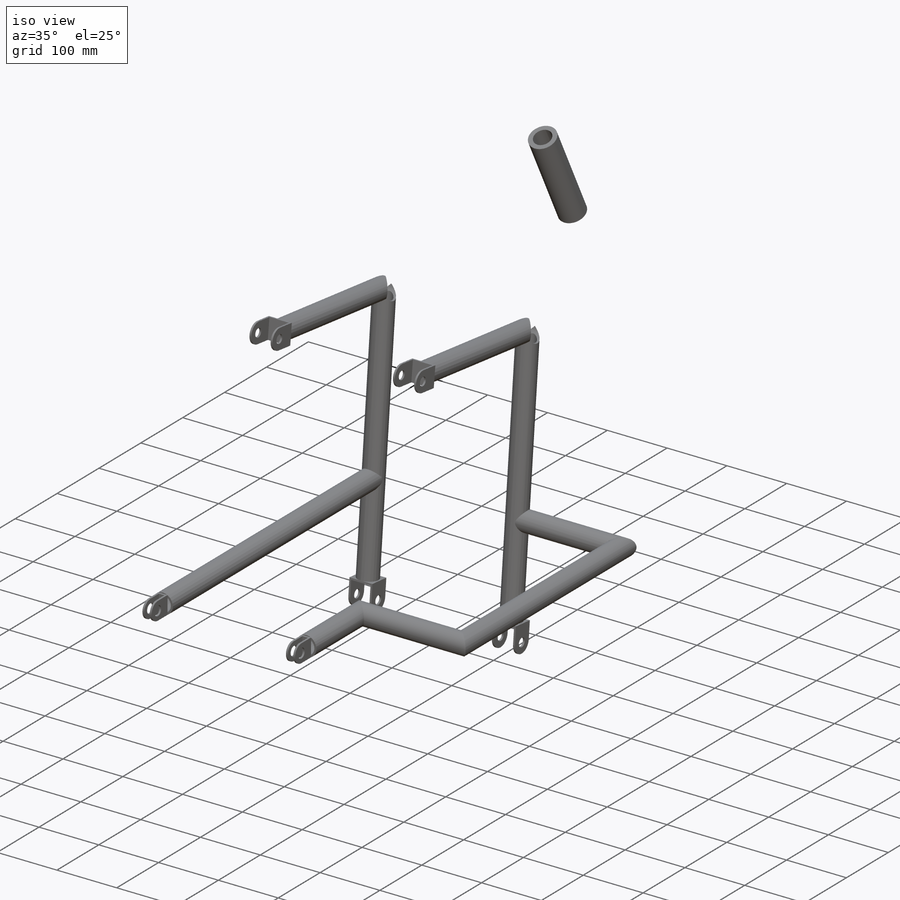
[diagram: iso view]
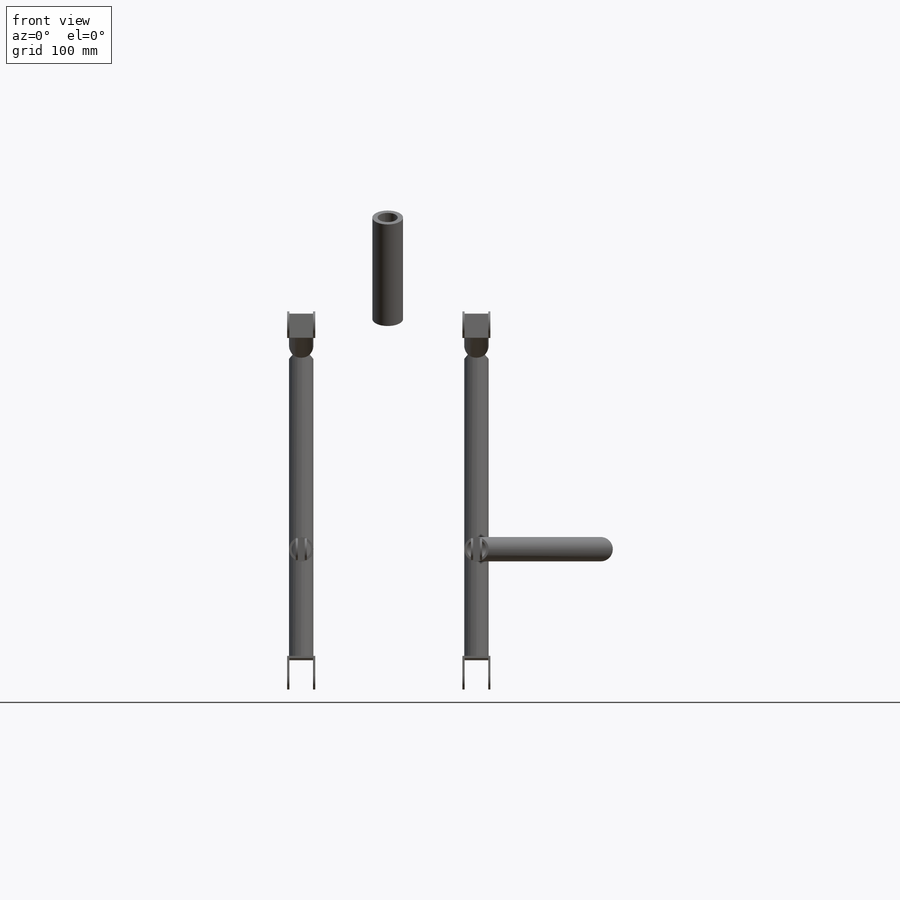
[diagram: front view]
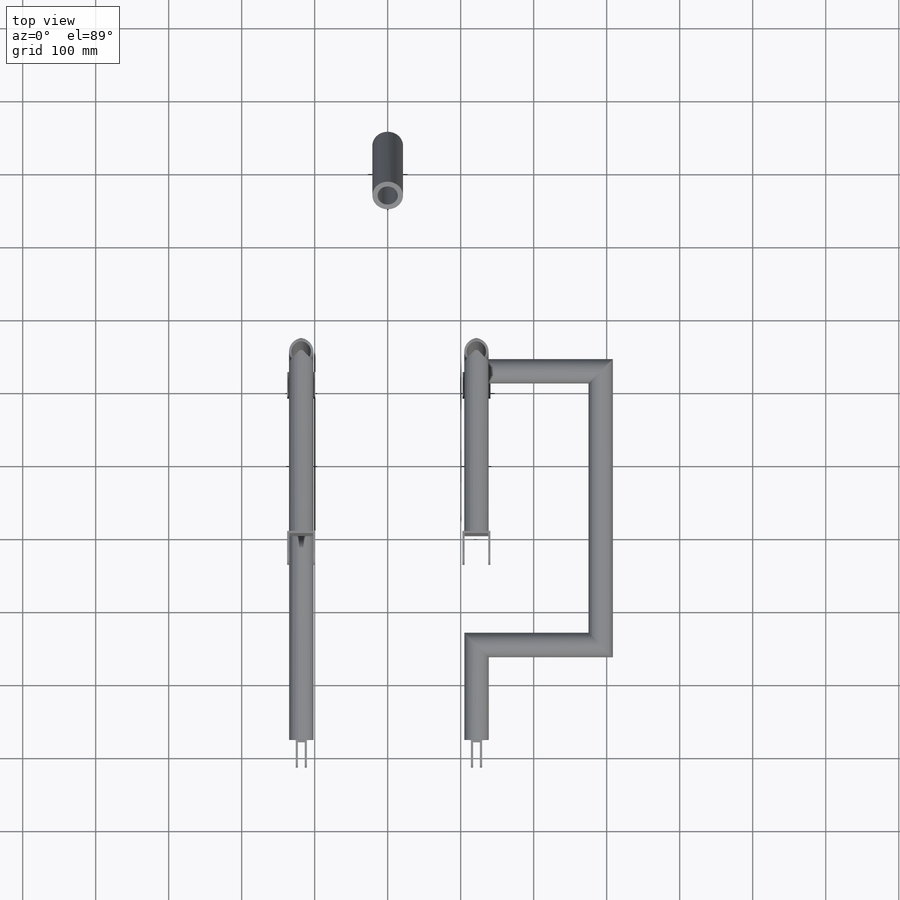
[diagram: top view]
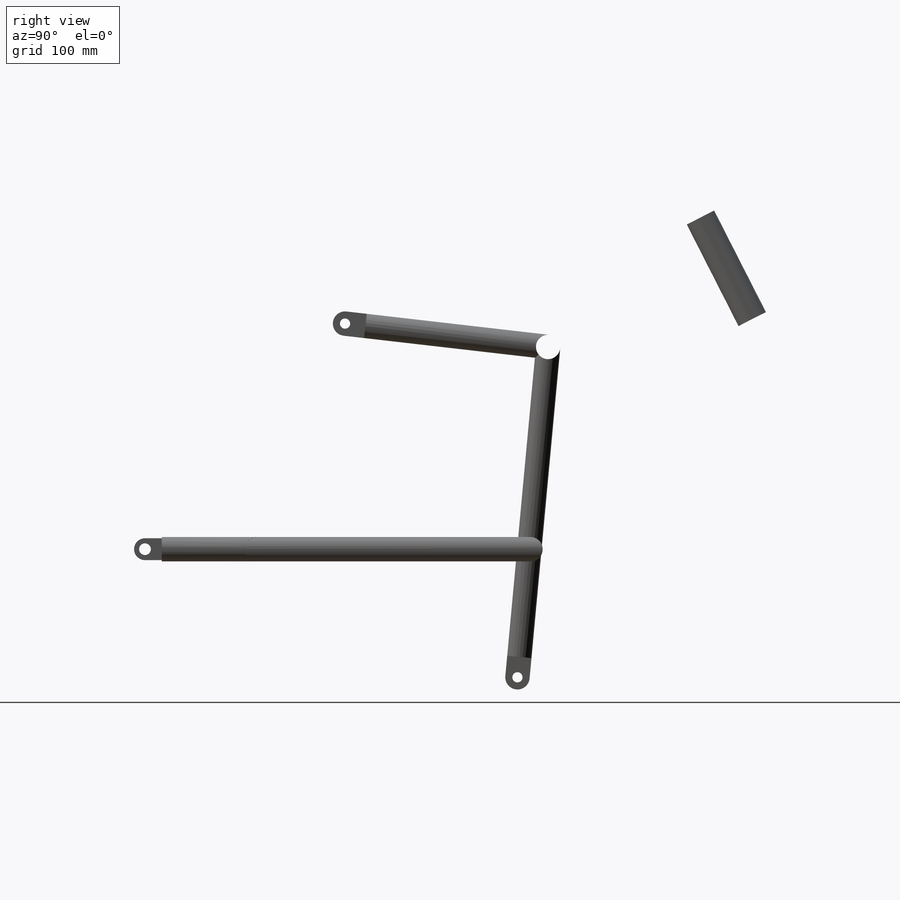
[diagram: right view]
SOLIDWORKS PART (.sldprt)
format: sldprt  version: not decoded by parser v0  size: 572,928 bytes
history: native  units: mm
features: sketch x18, plane x10, extrude x9, pattern_linear x3, cut_extrude x3, material x1 (+10 scaffold rows collapsed)
feature tree (54):
  scaffold x10  (default folders/planes/origin — collapsed)
  material  "Material <sin especificar>"
  plane  "Alzado"
  plane  "Planta"
  plane  "Vista lateral"
  sketch  "Croquis1"  dims[c1.D1=280.0mm c1.D2=~266.567718mm c1.D3=~305.84153mm c1.D4=420.0mm c1.D5=150.0mm c1.D6=~452.474341mm c1.D7=~278.164187mm c2.D7=~91.260614deg c2.D8=~234.194479mm c3.D8=~123.835442deg c3.D9=~268.698694mm c4.D9=~123.835442deg c4.D10=420.0mm c5.D10=~95.304019deg c5.D11=~95.891491mm c6.D11=~140.262101deg c6.D12=~54.390241mm c7.D12=~88.468577deg c7.D13=~27.713212mm c8.D13=~91.531423deg c8.D14=~181.088942mm c8.D15=~137.334159mm]
  plane  "Plano1"  Offset=120mm
  sketch  "Croquis2"  dims[c1.D1=16.0mm c1.D3=30.0mm c1.D4=~8.548106mm c1.D7=33.4mm c1.D8=14.0mm c1.D11=14.0mm c1.D2=20.0mm c2.D4=25.0mm c2.D5=3.0mm c2.D6=3.0mm c2.D7=~41.169618mm c2.D9=25.0mm c2.D10=3.0mm]
  plane  "Plano2"  Offset=17.7mm
  sketch  "Croquis3"  dims[D1=12.6mm]
  extrude  "Saliente-Extruir1"  Depth=3mm
  sketch  "Croquis4"  dims[D1=0.0mm]
  extrude  "Saliente-Extruir2"  Depth=38.4mm
  sketch  "Croquis5"
  extrude  "Saliente-Extruir3"  Depth=3mm
  pattern_linear  "MatrizL1"  Count1=2 Count2=1 Spacing1=240mm Spacing2=10mm
  plane  "Plano3"  Offset=6.3mm
  sketch  "Croquis8"
  extrude  "Saliente-Extruir5"  Depth=3mm
  sketch  "Croquis9"
  extrude  "Saliente-Extruir6"  Depth=15.3mm
  sketch  "Croquis10"
  extrude  "Saliente-Extruir7"  Depth=3mm
  pattern_linear  "MatrizL2"  Count1=2 Count2=1 Spacing1=240mm Spacing2=10mm
  pattern_linear  "MatrizL3"  Count1=2 Count2=1 Spacing1=240mm Spacing2=10mm
  plane  "Plano4"
  sketch  "Croquis11"  dims[D1=130.0mm D2=170.0mm D3=375.0mm]
  plane  "Plano6"
  sketch  "Sketch1"  dims[In_dia=26.6446mm Out_dia=33.401mm D1=25.4mm]
  sketch  "Croquis14"  dims[D1=500.0mm]
  plane  "Plano7"
  sketch  "Sketch11"  dims[In_dia=26.6446mm Out_dia=33.401mm D1=25.4mm]
  plane  "Plano8"
  sketch  "Croquis16"  dims[D1=~14.127747mm]
  extrude  "Saliente-Extruir8"  Depth=100mm
  sketch  "Croquis17"  dims[D1=~13.113722mm]
  cut_extrude  "Cortar-Extruir1"  Depth=316.14mm
  sketch  "Croquis18"  dims[D1=~11.957124mm]
  extrude  "Saliente-Extruir9"  Depth=426.14mm
  sketch  "Croquis20"  dims[D1=33.4mm]
  cut_extrude  "Cortar-Extruir2"  Depth=436.14mm
  sketch  "Croquis22"  dims[D1=33.4mm]
  extrude  "Saliente-Extruir11"  Depth=250mm
  cut_extrude  "Cortar-Extruir4"  [1 undecoded]
  sketch  "Croquis20<3>"  dims[D1=280.0mm]
decode coverage: 28 of 33 modeling features carry decoded parameters
note: ~ marks probable driven/reference dimensions
note: 1 parameter value undecoded
note: suppression state not decoded; provenance and decode notes live in map.json
